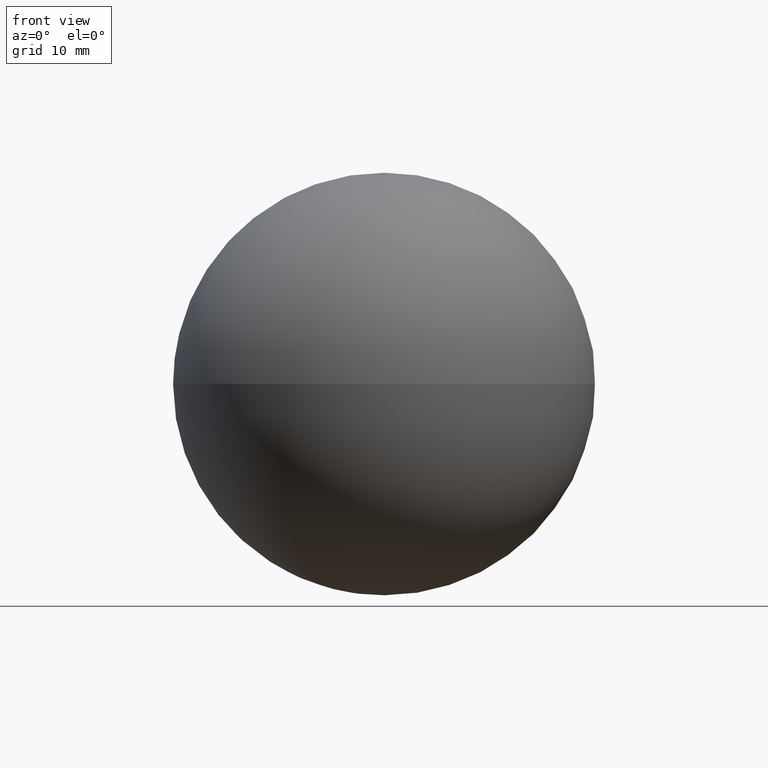
[diagram: clean part render]
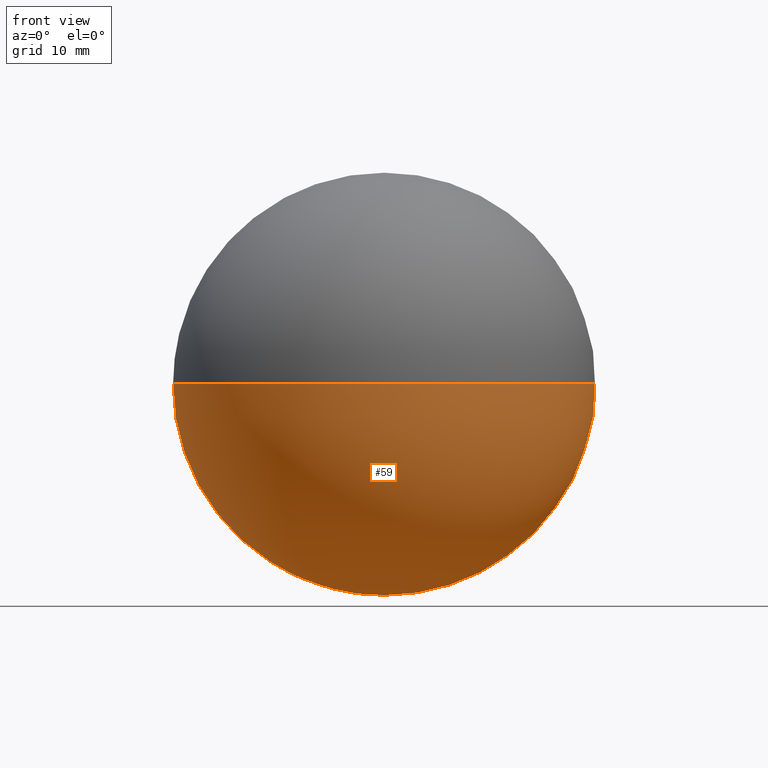
[diagram: same view with one face highlighted and labeled with its STEP entity id]
A machine part, front view. The second image highlights one B-rep face of the part: STEP entity #59.
In plain terms, the highlighted spherical surface has radius 25 mm.
Its self-contained STEP definition (entity closure, byte-faithful):
#2 = VERTEX_POINT ( 'NONE', #25 ) ;
#8 = EDGE_CURVE ( 'NONE', #2, #72, #99, .T. ) ;
#10 = AXIS2_PLACEMENT_3D ( 'NONE', #100, #123, #118 ) ;
#21 = EDGE_CURVE ( 'NONE', #2, #72, #41, .T. ) ;
#23 = AXIS2_PLACEMENT_3D ( 'NONE', #112, #68, #104 ) ;
#25 = CARTESIAN_POINT ( 'NONE',  ( -1.530808498934191500E-015, 25.00000000000000000, 0.0000000000000000000 ) ) ;
#34 = ORIENTED_EDGE ( 'NONE', *, *, #8, .F. ) ;
#41 = CIRCLE ( 'NONE', #114, 25.00000000000000000 ) ;
#59 = ADVANCED_FACE ( 'NONE', ( #66 ), #82, .T. ) ;
#66 = FACE_OUTER_BOUND ( 'NONE', #79, .T. ) ;
#68 = DIRECTION ( 'NONE',  ( -0.0000000000000000000, -0.0000000000000000000, -1.000000000000000000 ) ) ;
#72 = VERTEX_POINT ( 'NONE', #124 ) ;
#79 = EDGE_LOOP ( 'NONE', ( #34, #116 ) ) ;
#82 = SPHERICAL_SURFACE ( 'NONE', #23, 25.00000000000000000 ) ;
#99 = CIRCLE ( 'NONE', #10, 25.00000000000000000 ) ;
#100 = CARTESIAN_POINT ( 'NONE',  ( 0.0000000000000000000, 0.0000000000000000000, 0.0000000000000000000 ) ) ;
#104 = DIRECTION ( 'NONE',  ( -1.000000000000000000, 0.0000000000000000000, 0.0000000000000000000 ) ) ;
#105 = DIRECTION ( 'NONE',  ( -1.000000000000000000, 0.0000000000000000000, 1.224646799147353200E-016 ) ) ;
#107 = DIRECTION ( 'NONE',  ( -1.224646799147353200E-016, 0.0000000000000000000, -1.000000000000000000 ) ) ;
#108 = CARTESIAN_POINT ( 'NONE',  ( 0.0000000000000000000, 0.0000000000000000000, 0.0000000000000000000 ) ) ;
#112 = CARTESIAN_POINT ( 'NONE',  ( 0.0000000000000000000, 0.0000000000000000000, 0.0000000000000000000 ) ) ;
#114 = AXIS2_PLACEMENT_3D ( 'NONE', #108, #107, #105 ) ;
#116 = ORIENTED_EDGE ( 'NONE', *, *, #21, .T. ) ;
#118 = DIRECTION ( 'NONE',  ( 1.000000000000000000, 0.0000000000000000000, 0.0000000000000000000 ) ) ;
#123 = DIRECTION ( 'NONE',  ( -0.0000000000000000000, 0.0000000000000000000, 1.000000000000000000 ) ) ;
#124 = CARTESIAN_POINT ( 'NONE',  ( -1.530808498934191500E-015, -25.00000000000000000, 0.0000000000000000000 ) ) ;